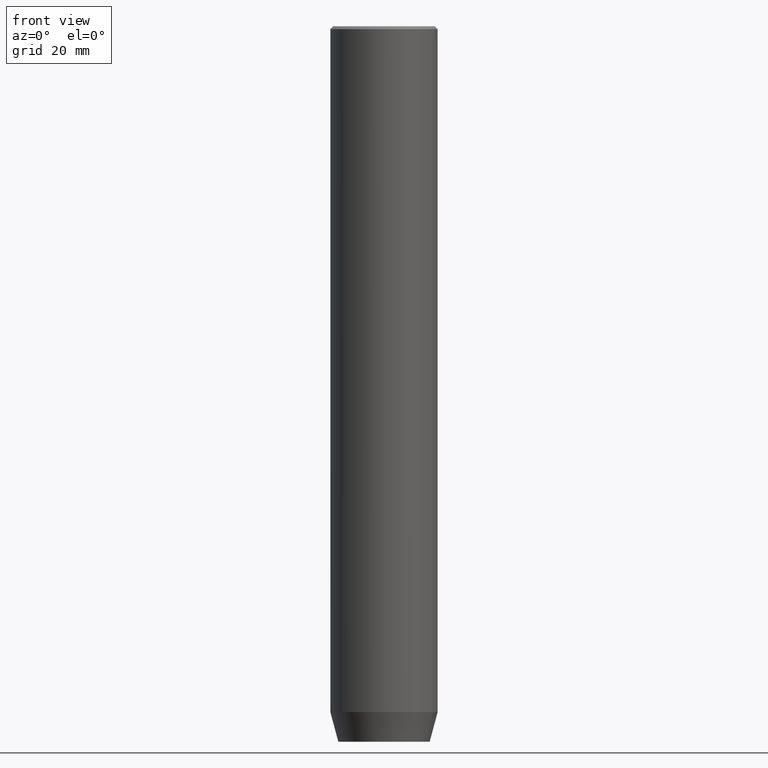
[diagram: clean part render]
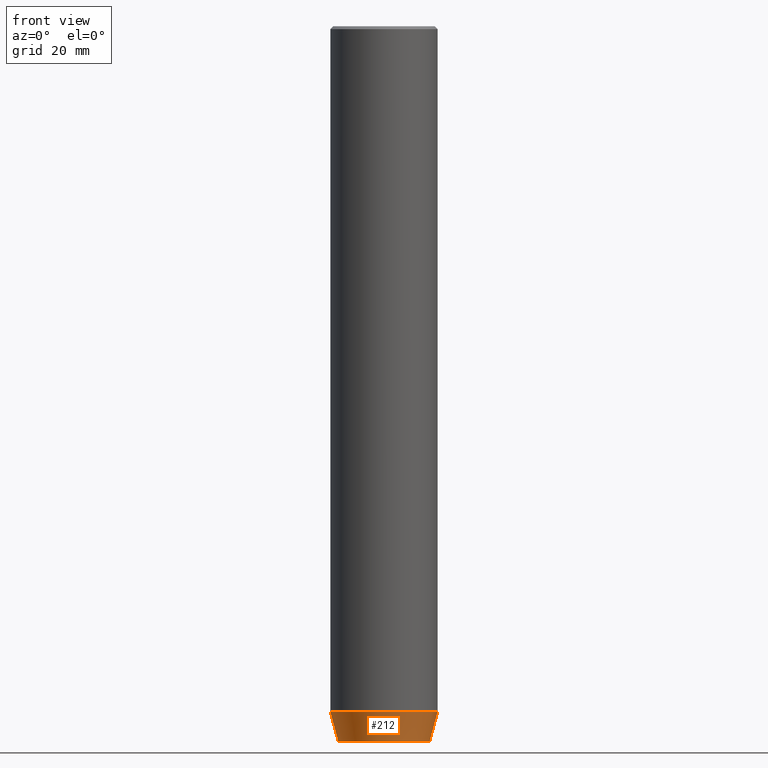
[diagram: same view with one face highlighted and labeled with its STEP entity id]
A machine part, front view. The second image highlights one B-rep face of the part: STEP entity #212.
In plain terms, the highlighted conical surface has half-angle 15 deg.
Its self-contained STEP definition (entity closure, byte-faithful):
#10 = DIRECTION ( 'NONE',  ( 1.000000000000000000, 0.000000000000000000, 0.000000000000000000 ) ) ;
#18 = DIRECTION ( 'NONE',  ( -0.000000000000000000, -0.000000000000000000, 1.000000000000000000 ) ) ;
#58 = ORIENTED_EDGE ( 'NONE', *, *, #88, .F. ) ;
#75 = VERTEX_POINT ( 'NONE', #92 ) ;
#88 = EDGE_CURVE ( 'NONE', #75, #484, #505, .T. ) ;
#92 = CARTESIAN_POINT ( 'NONE',  ( -7.660254037844380193, 1.020146339021394272E-15, -120.0000000000000000 ) ) ;
#94 = DIRECTION ( 'NONE',  ( -0.2588190451025214611, 3.169619151431774186E-17, 0.9659258262890679791 ) ) ;
#99 = CARTESIAN_POINT ( 'NONE',  ( 9.000000000000000000, 0.000000000000000000, -114.9999999999999858 ) ) ;
#104 = CARTESIAN_POINT ( 'NONE',  ( 7.660254037844380193, 0.000000000000000000, -120.0000000000000000 ) ) ;
#111 = AXIS2_PLACEMENT_3D ( 'NONE', #416, #18, #10 ) ;
#144 = CONICAL_SURFACE ( 'NONE', #111, 9.000000000000000000, 0.2617993877991502405 ) ;
#163 = AXIS2_PLACEMENT_3D ( 'NONE', #210, #208, #306 ) ;
#208 = DIRECTION ( 'NONE',  ( -0.000000000000000000, -0.000000000000000000, 1.000000000000000000 ) ) ;
#209 = ORIENTED_EDGE ( 'NONE', *, *, #240, .T. ) ;
#210 = CARTESIAN_POINT ( 'NONE',  ( 0.000000000000000000, 0.000000000000000000, -120.0000000000000000 ) ) ;
#212 = ADVANCED_FACE ( 'NONE', ( #520 ), #144, .T. ) ;
#223 = CARTESIAN_POINT ( 'NONE',  ( -9.000000000000000000, 1.102182119232617714E-15, -114.9999999999999858 ) ) ;
#240 = EDGE_CURVE ( 'NONE', #270, #465, #561, .T. ) ;
#254 = DIRECTION ( 'NONE',  ( -0.000000000000000000, -0.000000000000000000, 1.000000000000000000 ) ) ;
#270 = VERTEX_POINT ( 'NONE', #104 ) ;
#279 = CARTESIAN_POINT ( 'NONE',  ( 9.000000000000000000, 0.000000000000000000, -114.9999999999999858 ) ) ;
#306 = DIRECTION ( 'NONE',  ( 1.000000000000000000, 0.000000000000000000, 0.000000000000000000 ) ) ;
#314 = CARTESIAN_POINT ( 'NONE',  ( 0.000000000000000000, 0.000000000000000000, -114.9999999999999858 ) ) ;
#387 = EDGE_LOOP ( 'NONE', ( #58, #518, #209, #444 ) ) ;
#389 = EDGE_CURVE ( 'NONE', #75, #270, #451, .T. ) ;
#392 = DIRECTION ( 'NONE',  ( 1.000000000000000000, 0.000000000000000000, 0.000000000000000000 ) ) ;
#398 = EDGE_CURVE ( 'NONE', #484, #465, #498, .T. ) ;
#401 = CARTESIAN_POINT ( 'NONE',  ( -9.000000000000000000, 1.102182119232617714E-15, -114.9999999999999858 ) ) ;
#416 = CARTESIAN_POINT ( 'NONE',  ( 0.000000000000000000, 0.000000000000000000, -114.9999999999999858 ) ) ;
#444 = ORIENTED_EDGE ( 'NONE', *, *, #398, .F. ) ;
#451 = CIRCLE ( 'NONE', #163, 7.660254037844380193 ) ;
#465 = VERTEX_POINT ( 'NONE', #279 ) ;
#484 = VERTEX_POINT ( 'NONE', #223 ) ;
#490 = VECTOR ( 'NONE', #94, 1000.000000000000114 ) ;
#498 = CIRCLE ( 'NONE', #516, 9.000000000000000000 ) ;
#505 = LINE ( 'NONE', #401, #490 ) ;
#516 = AXIS2_PLACEMENT_3D ( 'NONE', #314, #254, #392 ) ;
#518 = ORIENTED_EDGE ( 'NONE', *, *, #389, .T. ) ;
#520 = FACE_OUTER_BOUND ( 'NONE', #387, .T. ) ;
#524 = VECTOR ( 'NONE', #551, 1000.000000000000114 ) ;
#551 = DIRECTION ( 'NONE',  ( 0.2588190451025214611, 0.000000000000000000, 0.9659258262890679791 ) ) ;
#561 = LINE ( 'NONE', #99, #524 ) ;